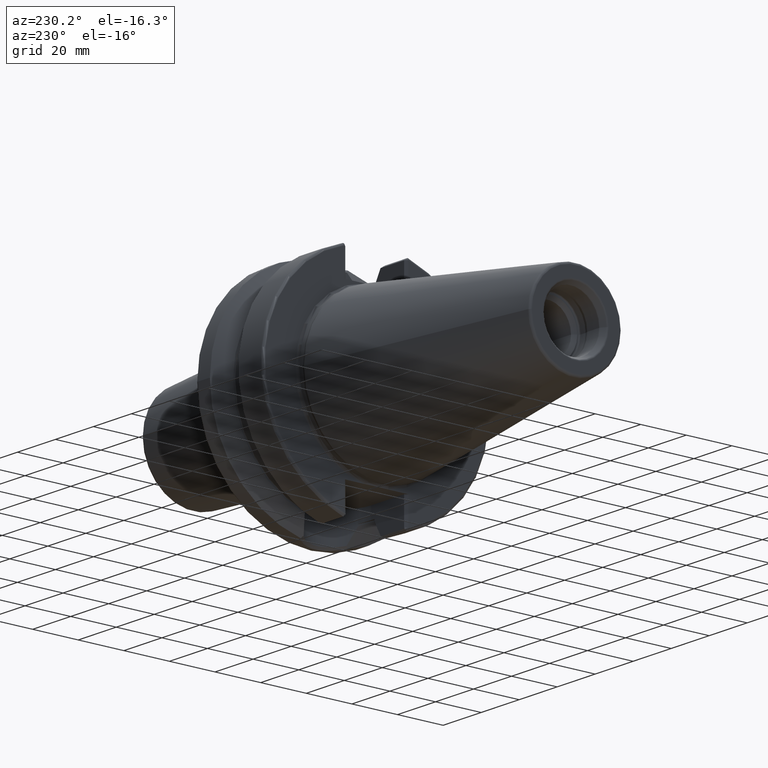
[diagram: clean part render]
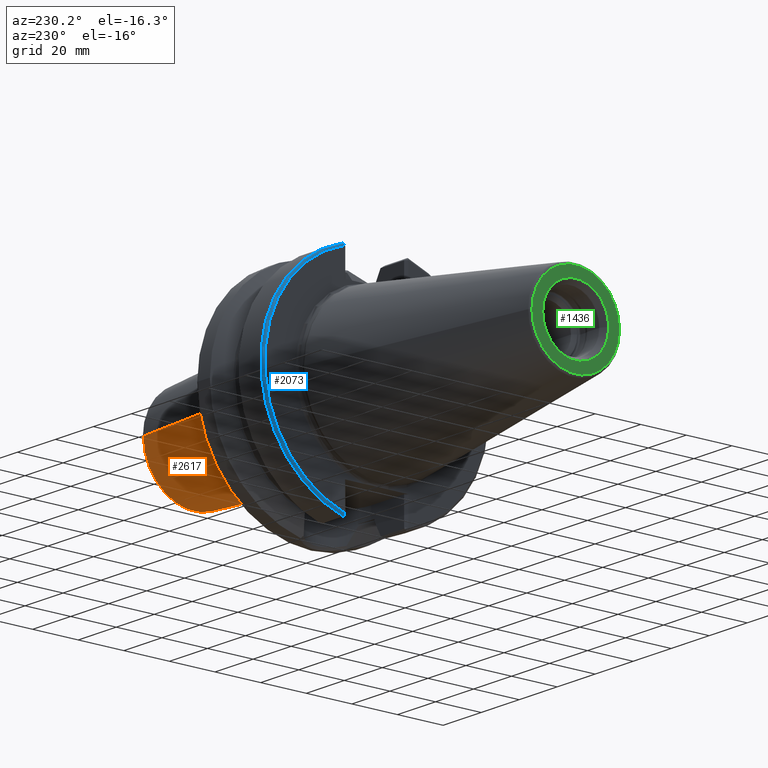
[diagram: same view with three faces highlighted in distinct colors, each labeled with its STEP entity id]
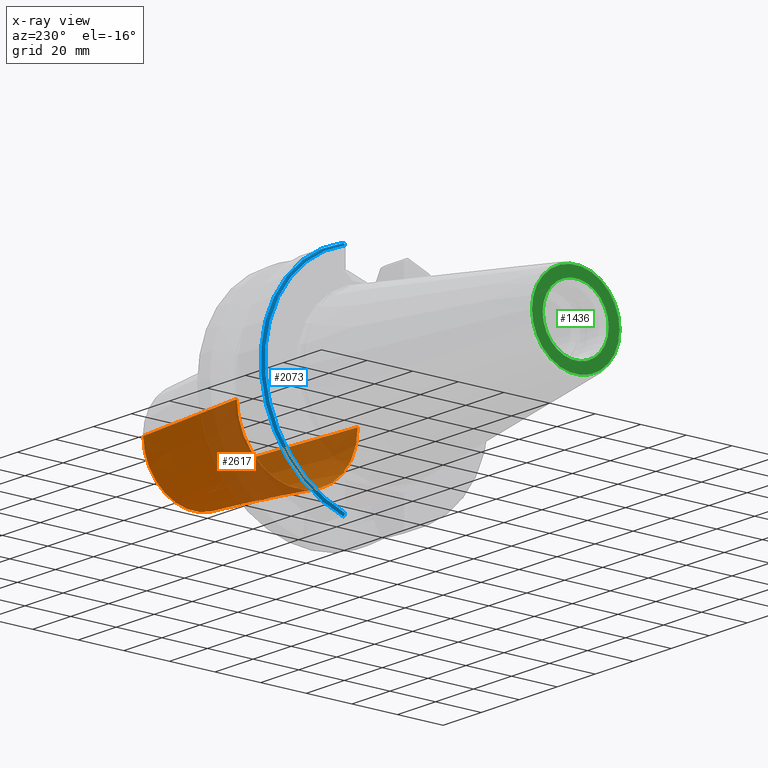
[diagram: x-ray of the same camera — body ghosted, the three highlighted faces saturated]
A machine part, auxiliary view with three faces highlighted in distinct colors.
The next image is the same camera in x-ray (body ghosted, the three faces saturated) — at least one of them is partly hidden behind the body in this view.
Their STEP definitions:

[orange] entity #2617 — the highlighted conical surface has half-angle 4.5 deg.
#873=CARTESIAN_POINT('',(4.472800939764E1,0.E0,0.E0));
#874=DIRECTION('',(-1.E0,0.E0,0.E0));
#875=DIRECTION('',(0.E0,1.E0,0.E0));
#876=AXIS2_PLACEMENT_3D('',#873,#874,#875);
#882=CARTESIAN_POINT('',(9.907845909573E1,0.E0,0.E0));
#883=DIRECTION('',(-1.E0,0.E0,0.E0));
#884=DIRECTION('',(0.E0,1.E0,0.E0));
#885=AXIS2_PLACEMENT_3D('',#882,#883,#884);
#887=DIRECTION('',(-9.969173337331E-1,7.845909572785E-2,2.968845749523E-14));
#888=VECTOR('',#887,5.451851207618E1);
#889=CARTESIAN_POINT('',(9.907845909573E1,2.222252684207E1,
-1.615325214459E-12));
#890=LINE('',#889,#888);
#891=DIRECTION('',(-9.969173337331E-1,-7.845909572785E-2,-2.967597790558E-14));
#892=VECTOR('',#891,5.451851207618E1);
#893=CARTESIAN_POINT('',(9.907845909573E1,-2.222252684207E1,
1.614644845800E-12));
#894=LINE('',#893,#892);
#1391=CARTESIAN_POINT('',(4.472800939764E1,2.65E1,0.E0));
#1392=CARTESIAN_POINT('',(4.472800939764E1,-2.65E1,0.E0));
#1393=VERTEX_POINT('',#1391);
#1394=VERTEX_POINT('',#1392);
#1411=CARTESIAN_POINT('',(9.907845909573E1,2.222252684207E1,0.E0));
#1412=CARTESIAN_POINT('',(9.907845909573E1,-2.222252684207E1,0.E0));
#1413=VERTEX_POINT('',#1411);
#1414=VERTEX_POINT('',#1412);
#2603=CARTESIAN_POINT('',(7.190323424668E1,0.E0,0.E0));
#2604=DIRECTION('',(-1.E0,0.E0,0.E0));
#2605=DIRECTION('',(0.E0,1.E0,0.E0));
#2606=AXIS2_PLACEMENT_3D('',#2603,#2604,#2605);
#2607=CONICAL_SURFACE('',#2606,2.436126342104E1,4.5E0);
#2609=ORIENTED_EDGE('',*,*,#2608,.F.);
#2611=ORIENTED_EDGE('',*,*,#2610,.T.);
#2612=ORIENTED_EDGE('',*,*,#2597,.T.);
#2614=ORIENTED_EDGE('',*,*,#2613,.F.);
#2615=EDGE_LOOP('',(#2609,#2611,#2612,#2614));
#2616=FACE_OUTER_BOUND('',#2615,.F.);
#2617=ADVANCED_FACE('',(#2616),#2607,.T.);
#877=CIRCLE('',#876,2.65E1);
#886=CIRCLE('',#885,2.222252684207E1);
#2597=EDGE_CURVE('',#1393,#1394,#877,.T.);
#2608=EDGE_CURVE('',#1413,#1414,#886,.T.);
#2610=EDGE_CURVE('',#1413,#1393,#890,.T.);
#2613=EDGE_CURVE('',#1414,#1394,#894,.T.);

[blue] entity #2073 — the highlighted toroidal blend (fillet) surface has major radius 48.9875 mm and minor (blend) radius 1 mm.
#227=CARTESIAN_POINT('',(4.E0,0.E0,0.E0));
#228=DIRECTION('',(-1.E0,0.E0,0.E0));
#229=DIRECTION('',(0.E0,2.837968869610E-1,9.588844179312E-1));
#230=AXIS2_PLACEMENT_3D('',#227,#228,#229);
#571=CARTESIAN_POINT('',(3.999999999701E0,1.386327248661E1,-4.802665840350E1));
#572=CARTESIAN_POINT('',(3.940459880706E0,1.386328759388E1,-4.802665404266E1));
#573=CARTESIAN_POINT('',(3.818524379244E0,1.386408249541E1,-4.801536526032E1));
#574=CARTESIAN_POINT('',(3.632802361895E0,1.386813157488E1,-4.795971866684E1));
#575=CARTESIAN_POINT('',(3.454761225176E0,1.387449273833E1,-4.786347597167E1));
#576=CARTESIAN_POINT('',(3.294931333912E0,1.388240594639E1,-4.772857875800E1));
#577=CARTESIAN_POINT('',(3.162899754239E0,1.389052093324E1,-4.756045881447E1));
#578=CARTESIAN_POINT('',(3.066796699794E0,1.389728433203E1,-4.736907635249E1));
#579=CARTESIAN_POINT('',(3.011034865800E0,1.390161469890E1,-4.716733990672E1));
#580=CARTESIAN_POINT('',(2.999993172884E0,1.390258355640E1,-4.703686424349E1));
#581=CARTESIAN_POINT('',(2.999993172884E0,1.390249317248E1,-4.697335004621E1));
#583=CARTESIAN_POINT('',(4.E0,1.390251954399E1,4.697334463905E1));
#584=DIRECTION('',(0.E0,9.588842998530E-1,-2.837972859196E-1));
#585=DIRECTION('',(-1.E0,-1.200817223435E-12,-4.057199021190E-12));
#586=AXIS2_PLACEMENT_3D('',#583,#584,#585);
#588=CARTESIAN_POINT('',(3.E0,0.E0,0.E0));
#589=DIRECTION('',(-1.E0,0.E0,0.E0));
#590=DIRECTION('',(0.E0,2.837969049058E-1,9.588844126201E-1));
#591=AXIS2_PLACEMENT_3D('',#588,#589,#590);
#1356=CARTESIAN_POINT('',(3.E0,1.390251954398E1,4.697334463905E1));
#1357=CARTESIAN_POINT('',(4.E0,1.418631682991E1,4.793222893890E1));
#1358=VERTEX_POINT('',#1356);
#1359=VERTEX_POINT('',#1357);
#1370=CARTESIAN_POINT('',(2.999993172884E0,1.390249317248E1,-4.697335004621E1));
#1372=VERTEX_POINT('',#1370);
#1374=VERTEX_POINT('',#571);
#2060=CARTESIAN_POINT('',(4.E0,0.E0,0.E0));
#2061=DIRECTION('',(1.E0,0.E0,0.E0));
#2062=DIRECTION('',(0.E0,-1.E0,0.E0));
#2063=AXIS2_PLACEMENT_3D('',#2060,#2061,#2062);
#2064=TOROIDAL_SURFACE('',#2063,4.89875E1,1.E0);
#2066=ORIENTED_EDGE('',*,*,#2065,.F.);
#2067=ORIENTED_EDGE('',*,*,#1738,.F.);
#2069=ORIENTED_EDGE('',*,*,#2068,.F.);
#2070=ORIENTED_EDGE('',*,*,#1575,.T.);
#2071=EDGE_LOOP('',(#2066,#2067,#2069,#2070));
#2072=FACE_OUTER_BOUND('',#2071,.F.);
#2073=ADVANCED_FACE('',(#2072),#2064,.T.);
#231=CIRCLE('',#230,4.99875E1);
#582=B_SPLINE_CURVE_WITH_KNOTS('',3,(#571,#572,#573,#574,#575,#576,#577,#578,
#579,#580,#581),.UNSPECIFIED.,.F.,.F.,(4,1,1,1,1,1,1,1,4),(0.E0,1.25E-1,2.5E-1,
3.75E-1,5.E-1,6.25E-1,7.5E-1,8.75E-1,1.E0),.UNSPECIFIED.);
#587=CIRCLE('',#586,1.E0);
#592=CIRCLE('',#591,4.89875E1);
#1575=EDGE_CURVE('',#1358,#1372,#592,.T.);
#1738=EDGE_CURVE('',#1359,#1374,#231,.T.);
#2065=EDGE_CURVE('',#1374,#1372,#582,.T.);
#2068=EDGE_CURVE('',#1358,#1359,#587,.T.);

[green] entity #1436 — the highlighted planar face has unit normal (1, 0, 0).
#2=CARTESIAN_POINT('',(-1.018E2,0.E0,0.E0));
#3=DIRECTION('',(-1.E0,0.E0,0.E0));
#4=DIRECTION('',(0.E0,1.E0,0.E0));
#5=AXIS2_PLACEMENT_3D('',#2,#3,#4);
#7=CARTESIAN_POINT('',(-1.018E2,0.E0,0.E0));
#8=DIRECTION('',(1.E0,0.E0,0.E0));
#9=DIRECTION('',(0.E0,1.E0,0.E0));
#10=AXIS2_PLACEMENT_3D('',#7,#8,#9);
#12=CARTESIAN_POINT('',(-1.018E2,0.E0,0.E0));
#13=DIRECTION('',(1.E0,0.E0,0.E0));
#14=DIRECTION('',(0.E0,1.E0,0.E0));
#15=AXIS2_PLACEMENT_3D('',#12,#13,#14);
#17=CARTESIAN_POINT('',(-1.018E2,0.E0,0.E0));
#18=DIRECTION('',(1.E0,0.E0,0.E0));
#19=DIRECTION('',(0.E0,-1.E0,0.E0));
#20=AXIS2_PLACEMENT_3D('',#17,#18,#19);
#1169=CARTESIAN_POINT('',(-1.018E2,1.921319540766E1,0.E0));
#1171=VERTEX_POINT('',#1169);
#1173=CARTESIAN_POINT('',(-1.018E2,-1.921319540766E1,0.E0));
#1175=VERTEX_POINT('',#1173);
#1298=CARTESIAN_POINT('',(-1.018E2,1.446188021535E1,0.E0));
#1299=CARTESIAN_POINT('',(-1.018E2,-1.446188021535E1,0.E0));
#1300=VERTEX_POINT('',#1298);
#1301=VERTEX_POINT('',#1299);
#1419=CARTESIAN_POINT('',(-1.018E2,0.E0,0.E0));
#1420=DIRECTION('',(1.E0,0.E0,0.E0));
#1421=DIRECTION('',(0.E0,-1.E0,0.E0));
#1422=AXIS2_PLACEMENT_3D('',#1419,#1420,#1421);
#1423=PLANE('',#1422);
#1425=ORIENTED_EDGE('',*,*,#1424,.F.);
#1427=ORIENTED_EDGE('',*,*,#1426,.T.);
#1428=EDGE_LOOP('',(#1425,#1427));
#1429=FACE_OUTER_BOUND('',#1428,.F.);
#1431=ORIENTED_EDGE('',*,*,#1430,.F.);
#1433=ORIENTED_EDGE('',*,*,#1432,.F.);
#1434=EDGE_LOOP('',(#1431,#1433));
#1435=FACE_BOUND('',#1434,.F.);
#1436=ADVANCED_FACE('',(#1429,#1435),#1423,.F.);
#6=CIRCLE('',#5,1.921319540766E1);
#11=CIRCLE('',#10,1.921319540766E1);
#16=CIRCLE('',#15,1.446188021535E1);
#21=CIRCLE('',#20,1.446188021535E1);
#1424=EDGE_CURVE('',#1171,#1175,#6,.T.);
#1426=EDGE_CURVE('',#1171,#1175,#11,.T.);
#1430=EDGE_CURVE('',#1300,#1301,#16,.T.);
#1432=EDGE_CURVE('',#1301,#1300,#21,.T.);